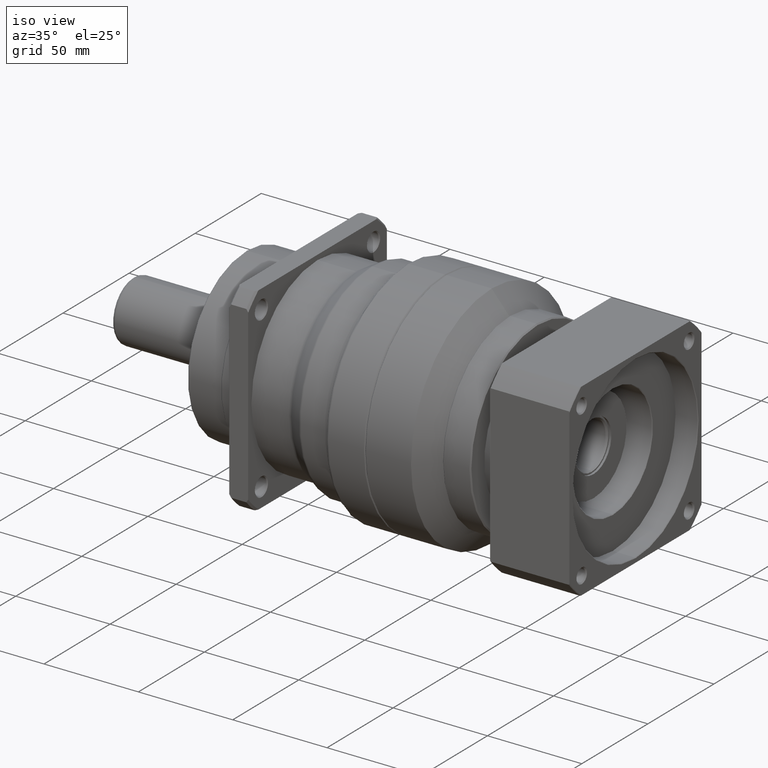
[diagram: clean part render]
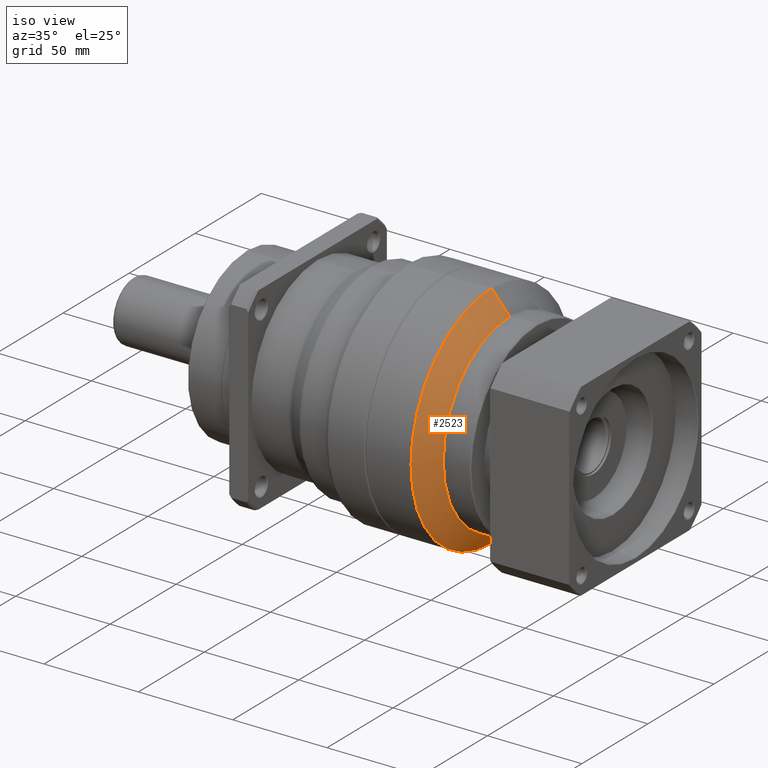
[diagram: same view with one face highlighted and labeled with its STEP entity id]
A machine part, iso view. The second image highlights one B-rep face of the part: STEP entity #2523.
In plain terms, the highlighted conical surface has half-angle 49.074 deg.
Its self-contained STEP definition (entity closure, byte-faithful):
#6 = VECTOR ( 'NONE', #4258, 1000.000000000000100 ) ;
#159 = VERTEX_POINT ( 'NONE', #4161 ) ;
#204 = ORIENTED_EDGE ( 'NONE', *, *, #3835, .F. ) ;
#607 = EDGE_LOOP ( 'NONE', ( #204, #2770, #2257, #2804 ) ) ;
#702 = CARTESIAN_POINT ( 'NONE',  ( 193.9575191518874800, 4.633161260266394500, 0.0000000000000000000 ) ) ;
#1069 = EDGE_CURVE ( 'NONE', #4302, #2524, #2551, .T. ) ;
#1208 = CARTESIAN_POINT ( 'NONE',  ( 203.4050808168178400, 4.633161260266394500, 0.0000000000000000000 ) ) ;
#1368 = DIRECTION ( 'NONE',  ( -0.6550880052797525300, 0.0000000000000000000, 0.7555525827754113700 ) ) ;
#1577 = LINE ( 'NONE', #3848, #6 ) ;
#1786 = CARTESIAN_POINT ( 'NONE',  ( 203.4050808168178400, 4.633161260266394500, 50.13933783509870100 ) ) ;
#1923 = DIRECTION ( 'NONE',  ( -1.000000000000000000, -0.0000000000000000000, -0.0000000000000000000 ) ) ;
#2109 = EDGE_CURVE ( 'NONE', #2600, #4302, #5010, .T. ) ;
#2238 = VECTOR ( 'NONE', #1368, 1000.000000000000100 ) ;
#2257 = ORIENTED_EDGE ( 'NONE', *, *, #1069, .T. ) ;
#2287 = DIRECTION ( 'NONE',  ( 0.0000000000000000000, 0.0000000000000000000, 1.000000000000000000 ) ) ;
#2484 = CONICAL_SURFACE ( 'NONE', #4790, 50.13933783509870100, 0.8564972341648542400 ) ;
#2523 = ADVANCED_FACE ( 'NONE', ( #5189 ), #2484, .T. ) ;
#2524 = VERTEX_POINT ( 'NONE', #3513 ) ;
#2551 = LINE ( 'NONE', #1786, #2238 ) ;
#2600 = VERTEX_POINT ( 'NONE', #3619 ) ;
#2714 = DIRECTION ( 'NONE',  ( 0.0000000000000000000, 0.0000000000000000000, 1.000000000000000000 ) ) ;
#2770 = ORIENTED_EDGE ( 'NONE', *, *, #2109, .T. ) ;
#2804 = ORIENTED_EDGE ( 'NONE', *, *, #5105, .F. ) ;
#2805 = CIRCLE ( 'NONE', #3720, 61.03578160958027600 ) ;
#3045 = CARTESIAN_POINT ( 'NONE',  ( 203.4050808168178400, 4.633161260266394500, 0.0000000000000000000 ) ) ;
#3513 = CARTESIAN_POINT ( 'NONE',  ( 193.9575191518874800, 4.633161260266394500, 61.03578160958027600 ) ) ;
#3619 = CARTESIAN_POINT ( 'NONE',  ( 203.4050808168178400, 4.633161260266394500, -50.13933783509870100 ) ) ;
#3720 = AXIS2_PLACEMENT_3D ( 'NONE', #702, #1923, #2714 ) ;
#3835 = EDGE_CURVE ( 'NONE', #2600, #159, #1577, .T. ) ;
#3848 = CARTESIAN_POINT ( 'NONE',  ( 203.4050808168178400, 4.633161260266400700, -50.13933783509870100 ) ) ;
#3892 = DIRECTION ( 'NONE',  ( -1.000000000000000000, -0.0000000000000000000, -0.0000000000000000000 ) ) ;
#4161 = CARTESIAN_POINT ( 'NONE',  ( 193.9575191518874800, 4.633161260266402500, -61.03578160958027600 ) ) ;
#4258 = DIRECTION ( 'NONE',  ( -0.6550880052797525300, 9.252850520834231400E-017, -0.7555525827754113700 ) ) ;
#4302 = VERTEX_POINT ( 'NONE', #4599 ) ;
#4503 = DIRECTION ( 'NONE',  ( -1.000000000000000000, -0.0000000000000000000, -0.0000000000000000000 ) ) ;
#4599 = CARTESIAN_POINT ( 'NONE',  ( 203.4050808168178400, 4.633161260266400700, 50.13933783509870100 ) ) ;
#4790 = AXIS2_PLACEMENT_3D ( 'NONE', #3045, #3892, #2287 ) ;
#4903 = DIRECTION ( 'NONE',  ( 0.0000000000000000000, 0.0000000000000000000, 1.000000000000000000 ) ) ;
#5010 = CIRCLE ( 'NONE', #5114, 50.13933783509870100 ) ;
#5105 = EDGE_CURVE ( 'NONE', #159, #2524, #2805, .T. ) ;
#5114 = AXIS2_PLACEMENT_3D ( 'NONE', #1208, #4503, #4903 ) ;
#5189 = FACE_OUTER_BOUND ( 'NONE', #607, .T. ) ;